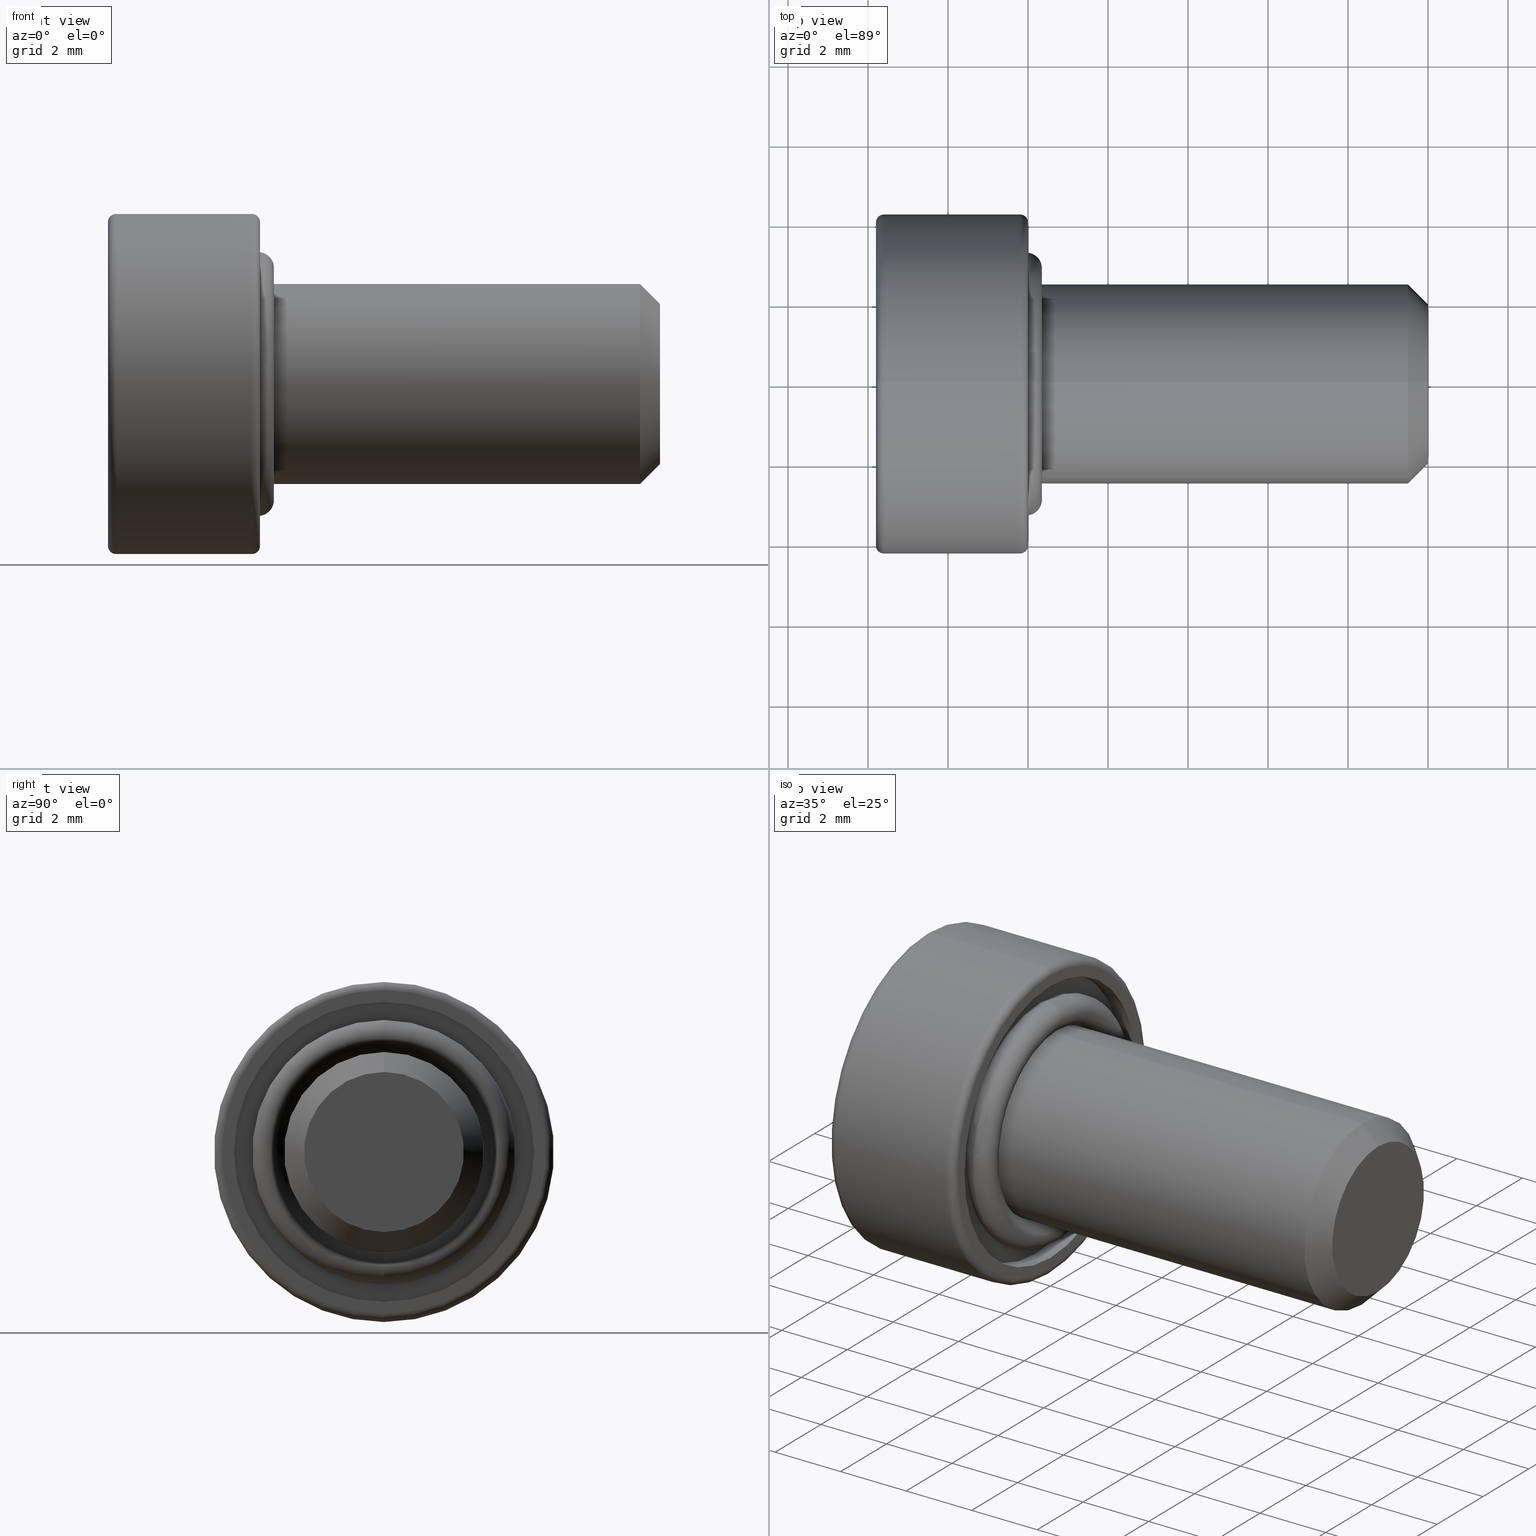
[diagram: canonical four-view strip — front | top / right | iso, engineering-drawing reading convention]
A machine part, canonical four-view strip (front | top / right | iso — engineering-drawing reading convention). The complete STEP part file that produces these views, byte-faithful:
ISO-10303-21;
HEADER;
FILE_DESCRIPTION (( 'STEP AP214' ),
    '1' );
FILE_NAME ('TL_418_M5_10.STEP',
    '2016-01-25T00:09:41',
    ( '' ),
    ( '' ),
    'SwSTEP 2.0',
    'SolidWorks 2015',
    '' );
FILE_SCHEMA (( 'AUTOMOTIVE_DESIGN' ));
ENDSEC;

DATA;
#1 = FILL_AREA_STYLE_COLOUR ( '', #736 ) ;
#2 = DIRECTION ( 'NONE',  ( 0.0000000000000000000, -1.000000000000000000, 0.0000000000000000000 ) ) ;
#3 = ORIENTED_EDGE ( 'NONE', *, *, #347, .F. ) ;
#4 =( GEOMETRIC_REPRESENTATION_CONTEXT ( 3 ) GLOBAL_UNCERTAINTY_ASSIGNED_CONTEXT ( ( #44 ) ) GLOBAL_UNIT_ASSIGNED_CONTEXT ( ( #157, #285, #344 ) ) REPRESENTATION_CONTEXT ( 'NONE', 'WORKASPACE' ) );
#5 = EDGE_CURVE ( 'NONE', #91, #808, #620, .T. ) ;
#6 = EDGE_CURVE ( 'NONE', #684, #583, #279, .T. ) ;
#7 = CARTESIAN_POINT ( 'NONE',  ( 0.0000000000000000000, 0.0000000000000000000, 0.0000000000000000000 ) ) ;
#8 = DIRECTION ( 'NONE',  ( -0.0000000000000000000, -1.000000000000000000, -0.0000000000000000000 ) ) ;
#9 = ORIENTED_EDGE ( 'NONE', *, *, #497, .F. ) ;
#10 = FACE_BOUND ( 'NONE', #151, .T. ) ;
#11 = CYLINDRICAL_SURFACE ( 'NONE', #643, 2.500000000000000000 ) ;
#12 = CARTESIAN_POINT ( 'NONE',  ( 10.00000000000000000, 0.0000000000000000000, 0.0000000000000000000 ) ) ;
#13 = ADVANCED_FACE ( 'NONE', ( #456 ), #737, .T. ) ;
#14 = CARTESIAN_POINT ( 'NONE',  ( -0.05000000000000007200, 0.0000000000000000000, 0.0000000000000000000 ) ) ;
#15 = PLANE ( 'NONE',  #158 ) ;
#16 = CARTESIAN_POINT ( 'NONE',  ( 0.0000000000000000000, 5.082284216461517100E-016, 4.050000000000001600 ) ) ;
#17 = AXIS2_PLACEMENT_3D ( 'NONE', #297, #723, #612 ) ;
#18 = VERTEX_POINT ( 'NONE', #371 ) ;
#19 = CARTESIAN_POINT ( 'NONE',  ( -0.4500000000000000100, 0.0000000000000000000, 0.0000000000000000000 ) ) ;
#20 = CARTESIAN_POINT ( 'NONE',  ( -0.4500000000000000100, 0.0000000000000000000, 0.0000000000000000000 ) ) ;
#21 = ORIENTED_EDGE ( 'NONE', *, *, #188, .T. ) ;
#22 = PRODUCT_DEFINITION ( 'UNKNOWN', '', #251, #175 ) ;
#23 = DIRECTION ( 'NONE',  ( 0.0000000000000000000, 1.000000000000000000, -1.224646799147353200E-016 ) ) ;
#24 = DIRECTION ( 'NONE',  ( 1.000000000000000000, 0.0000000000000000000, 0.0000000000000000000 ) ) ;
#25 = DIRECTION ( 'NONE',  ( 0.0000000000000000000, 0.0000000000000000000, 1.000000000000000000 ) ) ;
#26 = DIRECTION ( 'NONE',  ( 0.0000000000000000000, 0.0000000000000000000, -1.000000000000000000 ) ) ;
#27 = COLOUR_RGB ( '',0.7921568627450980000, 0.8196078431372548800, 0.9333333333333333500 ) ;
#28 = EDGE_CURVE ( 'NONE', #304, #324, #256, .T. ) ;
#29 = VERTEX_POINT ( 'NONE', #76 ) ;
#30 =( NAMED_UNIT ( * ) PLANE_ANGLE_UNIT ( ) SI_UNIT ( $, .RADIAN. ) );
#31 = EDGE_LOOP ( 'NONE', ( #483, #107, #269, #332 ) ) ;
#32 = CARTESIAN_POINT ( 'NONE',  ( -3.799999999999999800, 0.8660254037844360400, -1.499999999999995300 ) ) ;
#33 = DIRECTION ( 'NONE',  ( -0.0000000000000000000, -0.5000000000000003300, -0.8660254037844383700 ) ) ;
#34 = DIRECTION ( 'NONE',  ( 0.0000000000000000000, 0.0000000000000000000, -1.000000000000000000 ) ) ;
#35 = CARTESIAN_POINT ( 'NONE',  ( -1.800000000000000000, -1.732050807568872500, 3.588059837047438300E-016 ) ) ;
#36 = FACE_OUTER_BOUND ( 'NONE', #93, .T. ) ;
#37 = ADVANCED_FACE ( 'NONE', ( #754, #592 ), #80, .T. ) ;
#38 = DIRECTION ( 'NONE',  ( -0.7071067811865489100, 0.0000000000000000000, 0.7071067811865460200 ) ) ;
#39 = AXIS2_PLACEMENT_3D ( 'NONE', #502, #627, #703 ) ;
#40 = ORIENTED_EDGE ( 'NONE', *, *, #462, .T. ) ;
#41 = ORIENTED_EDGE ( 'NONE', *, *, #113, .F. ) ;
#42 = CARTESIAN_POINT ( 'NONE',  ( 0.0000000000000000000, 0.0000000000000000000, -3.750000000000000000 ) ) ;
#43 = APPLICATION_PROTOCOL_DEFINITION ( 'draft international standard', 'automotive_design', 1998, #114 ) ;
#44 = UNCERTAINTY_MEASURE_WITH_UNIT (LENGTH_MEASURE( 1.000000000000000100E-005 ), #157, 'distance_accuracy_value', 'NONE');
#45 = ORIENTED_EDGE ( 'NONE', *, *, #732, .T. ) ;
#46 = ORIENTED_EDGE ( 'NONE', *, *, #138, .F. ) ;
#47 = AXIS2_PLACEMENT_3D ( 'NONE', #611, #278, #771 ) ;
#48 = ORIENTED_EDGE ( 'NONE', *, *, #6, .F. ) ;
#49 = EDGE_CURVE ( 'NONE', #685, #304, #72, .T. ) ;
#50 = LINE ( 'NONE', #552, #396 ) ;
#51 = DIRECTION ( 'NONE',  ( 0.0000000000000000000, -1.000000000000000000, -1.251928832280969600E-016 ) ) ;
#52 = ORIENTED_EDGE ( 'NONE', *, *, #102, .T. ) ;
#53 = DIRECTION ( 'NONE',  ( 1.000000000000000000, -0.0000000000000000000, -0.0000000000000000000 ) ) ;
#54 = AXIS2_PLACEMENT_3D ( 'NONE', #668, #450, #742 ) ;
#55 = DIRECTION ( 'NONE',  ( 1.000000000000000000, 0.0000000000000000000, -0.0000000000000000000 ) ) ;
#56 = VECTOR ( 'NONE', #765, 1000.000000000000000 ) ;
#57 = CARTESIAN_POINT ( 'NONE',  ( -0.4500000000000000100, 3.061616997868383100E-016, -2.500000000000000000 ) ) ;
#58 = CIRCLE ( 'NONE', #546, 2.000000000000001800 ) ;
#59 = VERTEX_POINT ( 'NONE', #42 ) ;
#60 = DIRECTION ( 'NONE',  ( 0.0000000000000000000, 0.0000000000000000000, -1.000000000000000000 ) ) ;
#61 = DIRECTION ( 'NONE',  ( -1.000000000000000000, -0.0000000000000000000, -0.0000000000000000000 ) ) ;
#62 = ORIENTED_EDGE ( 'NONE', *, *, #702, .T. ) ;
#63 = AXIS2_PLACEMENT_3D ( 'NONE', #581, #406, #490 ) ;
#64 = EDGE_LOOP ( 'NONE', ( #681, #454, #132, #603 ) ) ;
#65 = CARTESIAN_POINT ( 'NONE',  ( -3.799999999999999800, -0.8660254037844348200, 1.499999999999994400 ) ) ;
#66 = EDGE_CURVE ( 'NONE', #59, #751, #414, .T. ) ;
#67 = DIRECTION ( 'NONE',  ( 0.0000000000000000000, -0.4999999999999998900, 0.8660254037844386000 ) ) ;
#68 = EDGE_CURVE ( 'NONE', #398, #29, #239, .T. ) ;
#69 = DIRECTION ( 'NONE',  ( 1.000000000000000000, -0.0000000000000000000, -0.0000000000000000000 ) ) ;
#70 = VECTOR ( 'NONE', #51, 1000.000000000000000 ) ;
#71 = DIRECTION ( 'NONE',  ( 0.0000000000000000000, 0.0000000000000000000, -1.000000000000000000 ) ) ;
#72 = LINE ( 'NONE', #791, #98 ) ;
#73 = ORIENTED_EDGE ( 'NONE', *, *, #227, .T. ) ;
#74 = DIRECTION ( 'NONE',  ( 0.0000000000000000000, -1.000000000000000000, 0.0000000000000000000 ) ) ;
#75 = SHAPE_DEFINITION_REPRESENTATION ( #370, #280 ) ;
#76 = CARTESIAN_POINT ( 'NONE',  ( -3.799999999999999800, 5.082284216461517100E-016, 4.050000000000001600 ) ) ;
#77 = DIRECTION ( 'NONE',  ( -1.000000000000000000, -0.0000000000000000000, -0.0000000000000000000 ) ) ;
#78 = VERTEX_POINT ( 'NONE', #238 ) ;
#79 = CARTESIAN_POINT ( 'NONE',  ( 0.0000000000000000000, 0.0000000000000000000, 0.0000000000000000000 ) ) ;
#80 = PLANE ( 'NONE',  #482 ) ;
#81 = ORIENTED_EDGE ( 'NONE', *, *, #422, .F. ) ;
#82 = AXIS2_PLACEMENT_3D ( 'NONE', #234, #241, #666 ) ;
#83 = CARTESIAN_POINT ( 'NONE',  ( -0.05000000000000007200, 0.0000000000000000000, -2.499999999999999600 ) ) ;
#84 = DIRECTION ( 'NONE',  ( 1.000000000000000000, 0.0000000000000000000, 0.0000000000000000000 ) ) ;
#85 = LINE ( 'NONE', #465, #575 ) ;
#86 = APPLICATION_PROTOCOL_DEFINITION ( 'draft international standard', 'automotive_design', 1998, #485 ) ;
#87 = CYLINDRICAL_SURFACE ( 'NONE', #424, 4.250000000000000900 ) ;
#88 = DIRECTION ( 'NONE',  ( -0.0000000000000000000, 1.000000000000000000, 8.763501825966792400E-016 ) ) ;
#89 = ITEM_DEFINED_TRANSFORMATION ( 'NONE', 'NONE', #717,  #401 ) ;
#90 = CARTESIAN_POINT ( 'NONE',  ( -0.05000000000000002400, 4.041334437186265500E-016, 3.299999999999999800 ) ) ;
#91 = VERTEX_POINT ( 'NONE', #210 ) ;
#92 = DIRECTION ( 'NONE',  ( 1.000000000000000000, -0.0000000000000000000, -0.0000000000000000000 ) ) ;
#93 = EDGE_LOOP ( 'NONE', ( #631, #558 ) ) ;
#94 = DIRECTION ( 'NONE',  ( 0.0000000000000000000, 0.0000000000000000000, 1.000000000000000000 ) ) ;
#95 = DIRECTION ( 'NONE',  ( 1.000000000000000000, -0.0000000000000000000, -0.0000000000000000000 ) ) ;
#96 = DIRECTION ( 'NONE',  ( 0.0000000000000000000, 0.0000000000000000000, 1.000000000000000000 ) ) ;
#97 = LINE ( 'NONE', #133, #439 ) ;
#98 = VECTOR ( 'NONE', #733, 1000.000000000000000 ) ;
#99 = AXIS2_PLACEMENT_3D ( 'NONE', #777, #23, #420 ) ;
#100 = DIRECTION ( 'NONE',  ( -1.000000000000000000, -0.0000000000000000000, -0.0000000000000000000 ) ) ;
#101 = CIRCLE ( 'NONE', #264, 2.500000000000000000 ) ;
#102 = EDGE_CURVE ( 'NONE', #685, #649, #50, .T. ) ;
#103 = DIRECTION ( 'NONE',  ( 0.0000000000000000000, 0.0000000000000000000, -1.000000000000000000 ) ) ;
#104 = ORIENTED_EDGE ( 'NONE', *, *, #308, .F. ) ;
#105 = EDGE_LOOP ( 'NONE', ( #560, #757, #326, #104 ) ) ;
#106 = DIRECTION ( 'NONE',  ( -1.000000000000000000, 0.0000000000000000000, 0.0000000000000000000 ) ) ;
#107 = ORIENTED_EDGE ( 'NONE', *, *, #524, .T. ) ;
#108 =( LENGTH_UNIT ( ) NAMED_UNIT ( * ) SI_UNIT ( .MILLI., .METRE. ) );
#109 = CIRCLE ( 'NONE', #654, 2.499999999999999600 ) ;
#110 = FACE_OUTER_BOUND ( 'NONE', #407, .T. ) ;
#111 = PRODUCT_DEFINITION ( 'UNKNOWN', '', #154, #590 ) ;
#112 = EDGE_LOOP ( 'NONE', ( #391, #245, #283, #73 ) ) ;
#113 = EDGE_CURVE ( 'NONE', #364, #685, #570, .T. ) ;
#114 = APPLICATION_CONTEXT ( 'automotive_design' ) ;
#115 = AXIS2_PLACEMENT_3D ( 'NONE', #586, #8, #26 ) ;
#116 = EDGE_CURVE ( 'NONE', #623, #553, #555, .T. ) ;
#117 = FACE_OUTER_BOUND ( 'NONE', #31, .T. ) ;
#118 = CIRCLE ( 'NONE', #321, 4.050000000000001600 ) ;
#119 = ADVANCED_FACE ( 'NONE', ( #213 ), #11, .T. ) ;
#120 = CLOSED_SHELL ( 'NONE', ( #173, #178, #184, #501 ) ) ;
#121 = DIRECTION ( 'NONE',  ( 0.0000000000000000000, 0.0000000000000000000, -1.000000000000000000 ) ) ;
#122 = ORIENTED_EDGE ( 'NONE', *, *, #335, .F. ) ;
#123 = ORIENTED_EDGE ( 'NONE', *, *, #102, .F. ) ;
#124 = ORIENTED_EDGE ( 'NONE', *, *, #28, .F. ) ;
#125 = AXIS2_PLACEMENT_3D ( 'NONE', #428, #74, #103 ) ;
#126 = ADVANCED_FACE ( 'NONE', ( #537 ), #522, .F. ) ;
#127 = CIRCLE ( 'NONE', #458, 0.1999999999999996500 ) ;
#128 = CIRCLE ( 'NONE', #246, 4.250000000000000900 ) ;
#129 = SURFACE_SIDE_STYLE ('',( #390 ) ) ;
#130 = VERTEX_POINT ( 'NONE', #447 ) ;
#131 = ADVANCED_FACE ( 'NONE', ( #358, #36 ), #430, .F. ) ;
#132 = ORIENTED_EDGE ( 'NONE', *, *, #160, .F. ) ;
#133 = CARTESIAN_POINT ( 'NONE',  ( -1.800000000000000000, 1.732050807568872500, -3.579244311116258100E-017 ) ) ;
#134 = FACE_OUTER_BOUND ( 'NONE', #105, .T. ) ;
#135 = DIRECTION ( 'NONE',  ( 0.0000000000000000000, 1.224646799147353200E-016, 1.000000000000000000 ) ) ;
#136 = SURFACE_STYLE_USAGE ( .BOTH. , #534 ) ;
#137 = DIRECTION ( 'NONE',  ( 1.000000000000000000, 0.0000000000000000000, 0.0000000000000000000 ) ) ;
#138 = EDGE_CURVE ( 'NONE', #384, #374, #677, .T. ) ;
#139 =( NAMED_UNIT ( * ) PLANE_ANGLE_UNIT ( ) SI_UNIT ( $, .RADIAN. ) );
#140 = EDGE_LOOP ( 'NONE', ( #596, #399, #641, #174 ) ) ;
#141 = CARTESIAN_POINT ( 'NONE',  ( -0.4500000000000000100, 4.592425496802574000E-016, 3.750000000000000000 ) ) ;
#142 = CARTESIAN_POINT ( 'NONE',  ( -0.05000000000000002400, 3.551475717527323800E-016, 2.899999999999999900 ) ) ;
#143 = TOROIDAL_SURFACE ( 'NONE', #687, 2.899999999999999900, 0.4000000000000001300 ) ;
#144 = DIRECTION ( 'NONE',  ( 1.000000000000000000, 0.0000000000000000000, 0.0000000000000000000 ) ) ;
#145 = TOROIDAL_SURFACE ( 'NONE', #17, 2.899999999999999900, 0.4000000000000001300 ) ;
#146 = DIRECTION ( 'NONE',  ( 0.0000000000000000000, 0.0000000000000000000, -1.000000000000000000 ) ) ;
#147 = ADVANCED_FACE ( 'NONE', ( #380 ), #817, .T. ) ;
#148 = AXIS2_PLACEMENT_3D ( 'NONE', #511, #217, #495 ) ;
#149 = DIRECTION ( 'NONE',  ( 0.0000000000000000000, 0.0000000000000000000, -1.000000000000000000 ) ) ;
#150 = CARTESIAN_POINT ( 'NONE',  ( -0.05000000000000002400, 3.551475717527323800E-016, 2.899999999999999900 ) ) ;
#151 = EDGE_LOOP ( 'NONE', ( #294, #204 ) ) ;
#152 = DIRECTION ( 'NONE',  ( 0.0000000000000000000, 0.0000000000000000000, -1.000000000000000000 ) ) ;
#153 = ORIENTED_EDGE ( 'NONE', *, *, #259, .T. ) ;
#154 = PRODUCT_DEFINITION_FORMATION_WITH_SPECIFIED_SOURCE ( 'ANY', '', #438, .NOT_KNOWN. ) ;
#155 =( LENGTH_UNIT ( ) NAMED_UNIT ( * ) SI_UNIT ( .MILLI., .METRE. ) );
#156 = CARTESIAN_POINT ( 'NONE',  ( -0.05000000000000002400, 0.0000000000000000000, 0.0000000000000000000 ) ) ;
#157 =( LENGTH_UNIT ( ) NAMED_UNIT ( * ) SI_UNIT ( .MILLI., .METRE. ) );
#158 = AXIS2_PLACEMENT_3D ( 'NONE', #540, #363, #599 ) ;
#159 = DIRECTION ( 'NONE',  ( 0.0000000000000000000, 0.0000000000000000000, -1.000000000000000000 ) ) ;
#160 = EDGE_CURVE ( 'NONE', #304, #78, #657, .T. ) ;
#161 = EDGE_CURVE ( 'NONE', #730, #271, #506, .T. ) ;
#162 = PLANE ( 'NONE',  #63 ) ;
#163 = DIRECTION ( 'NONE',  ( 1.000000000000000000, 0.0000000000000000000, 0.0000000000000000000 ) ) ;
#164 = ORIENTED_EDGE ( 'NONE', *, *, #188, .F. ) ;
#165 = CARTESIAN_POINT ( 'NONE',  ( -1.800000000000000000, 0.8660254037844360400, -1.499999999999995300 ) ) ;
#166 = CARTESIAN_POINT ( 'NONE',  ( -1.800000000000000000, -0.8660254037844362700, -1.499999999999995600 ) ) ;
#167 = DIRECTION ( 'NONE',  ( -1.000000000000000000, -0.0000000000000000000, -0.0000000000000000000 ) ) ;
#168 = DIRECTION ( 'NONE',  ( 1.000000000000000000, -0.0000000000000000000, -0.0000000000000000000 ) ) ;
#169 = FACE_OUTER_BOUND ( 'NONE', #360, .T. ) ;
#170 = ORIENTED_EDGE ( 'NONE', *, *, #208, .F. ) ;
#171 = FACE_OUTER_BOUND ( 'NONE', #467, .T. ) ;
#172 = AXIS2_PLACEMENT_3D ( 'NONE', #315, #423, #556 ) ;
#173 = ADVANCED_FACE ( 'NONE', ( #806 ), #145, .T. ) ;
#174 = ORIENTED_EDGE ( 'NONE', *, *, #772, .F. ) ;
#175 = PRODUCT_DEFINITION_CONTEXT ( 'detailed design', #319, 'design' ) ;
#176 = DIRECTION ( 'NONE',  ( 0.0000000000000000000, 0.0000000000000000000, -1.000000000000000000 ) ) ;
#178 = ADVANCED_FACE ( 'NONE', ( #171 ), #486, .T. ) ;
#177 = ORIENTED_EDGE ( 'NONE', *, *, #49, .F. ) ;
#179 = ADVANCED_FACE ( 'NONE', ( #788 ), #628, .F. ) ;
#180 = CARTESIAN_POINT ( 'NONE',  ( 0.0000000000000000000, 0.0000000000000000000, 0.0000000000000000000 ) ) ;
#181 = PRODUCT_RELATED_PRODUCT_CATEGORY ( 'part', '', ( #689 ) ) ;
#182 = CARTESIAN_POINT ( 'NONE',  ( 0.0000000000000000000, 0.0000000000000000000, 0.0000000000000000000 ) ) ;
#183 = EDGE_CURVE ( 'NONE', #196, #252, #632, .T. ) ;
#184 = ADVANCED_FACE ( 'NONE', ( #293 ), #461, .T. ) ;
#185 = VERTEX_POINT ( 'NONE', #602 ) ;
#186 = ADVANCED_FACE ( 'NONE', ( #609 ), #727, .F. ) ;
#187 = AXIS2_PLACEMENT_3D ( 'NONE', #14, #92, #220 ) ;
#188 = EDGE_CURVE ( 'NONE', #583, #684, #128, .T. ) ;
#189 = ADVANCED_FACE ( 'NONE', ( #110 ), #87, .T. ) ;
#190 = CIRCLE ( 'NONE', #334, 0.4000000000000001900 ) ;
#191 = DIRECTION ( 'NONE',  ( 0.0000000000000000000, 0.0000000000000000000, -1.000000000000000000 ) ) ;
#192 = VECTOR ( 'NONE', #378, 1000.000000000000000 ) ;
#193 = PRESENTATION_STYLE_ASSIGNMENT (( #731 ) ) ;
#194 = CARTESIAN_POINT ( 'NONE',  ( -0.05000000000000002400, 0.0000000000000000000, 0.0000000000000000000 ) ) ;
#195 = AXIS2_PLACEMENT_3D ( 'NONE', #156, #168, #149 ) ;
#196 = VERTEX_POINT ( 'NONE', #801 ) ;
#197 = DIRECTION ( 'NONE',  ( 0.0000000000000000000, 0.0000000000000000000, -1.000000000000000000 ) ) ;
#198 = PRODUCT_RELATED_PRODUCT_CATEGORY ( 'part', '', ( #438 ) ) ;
#199 = DIRECTION ( 'NONE',  ( 0.0000000000000000000, 0.0000000000000000000, -1.000000000000000000 ) ) ;
#200 = UNCERTAINTY_MEASURE_WITH_UNIT (LENGTH_MEASURE( 1.000000000000000100E-005 ), #155, 'distance_accuracy_value', 'NONE');
#201 = CYLINDRICAL_SURFACE ( 'NONE', #172, 2.500000000000000000 ) ;
#202 = PRESENTATION_STYLE_ASSIGNMENT (( #426 ) ) ;
#203 = CARTESIAN_POINT ( 'NONE',  ( -0.4500000000000000100, 0.0000000000000000000, 0.0000000000000000000 ) ) ;
#204 = ORIENTED_EDGE ( 'NONE', *, *, #802, .F. ) ;
#205 = STYLED_ITEM ( 'NONE', ( #202 ), #302 ) ;
#206 = EDGE_CURVE ( 'NONE', #18, #258, #764, .T. ) ;
#207 = ORIENTED_EDGE ( 'NONE', *, *, #518, .T. ) ;
#208 = EDGE_CURVE ( 'NONE', #185, #649, #266, .T. ) ;
#209 = CARTESIAN_POINT ( 'NONE',  ( -0.4500000000000000100, 0.0000000000000000000, 2.500000000000000000 ) ) ;
#210 = CARTESIAN_POINT ( 'NONE',  ( -0.05000000000000007200, 3.061616997868382600E-016, 2.499999999999999600 ) ) ;
#211 = ADVANCED_FACE ( 'NONE', ( #646 ), #566, .T. ) ;
#212 = DIRECTION ( 'NONE',  ( 1.000000000000000000, 0.0000000000000000000, 0.0000000000000000000 ) ) ;
#213 = FACE_OUTER_BOUND ( 'NONE', #783, .T. ) ;
#214 = DIRECTION ( 'NONE',  ( -0.0000000000000000000, 1.000000000000000000, 8.763501825966792400E-016 ) ) ;
#215 = DIRECTION ( 'NONE',  ( 1.000000000000000000, -0.0000000000000000000, -0.0000000000000000000 ) ) ;
#216 = VERTEX_POINT ( 'NONE', #57 ) ;
#217 = DIRECTION ( 'NONE',  ( -0.0000000000000000000, 0.8660254037844388200, 0.4999999999999998300 ) ) ;
#218 = AXIS2_PLACEMENT_3D ( 'NONE', #633, #804, #250 ) ;
#219 = DIRECTION ( 'NONE',  ( 0.0000000000000000000, -8.763501825966792400E-016, 1.000000000000000000 ) ) ;
#220 = DIRECTION ( 'NONE',  ( 0.0000000000000000000, 0.0000000000000000000, -1.000000000000000000 ) ) ;
#221 = CIRCLE ( 'NONE', #39, 3.299999999999999800 ) ;
#222 = VECTOR ( 'NONE', #61, 1000.000000000000000 ) ;
#223 = EDGE_LOOP ( 'NONE', ( #567, #568 ) ) ;
#224 = CARTESIAN_POINT ( 'NONE',  ( 10.00000000000000000, 0.0000000000000000000, 2.000000000000001800 ) ) ;
#225 = DIRECTION ( 'NONE',  ( -1.000000000000000000, -0.0000000000000000000, -0.0000000000000000000 ) ) ;
#226 = DIRECTION ( 'NONE',  ( 0.0000000000000000000, 0.4999999999999999400, -0.8660254037844387100 ) ) ;
#227 = EDGE_CURVE ( 'NONE', #244, #273, #452, .T. ) ;
#228 = ORIENTED_EDGE ( 'NONE', *, *, #576, .F. ) ;
#229 = FILL_AREA_STYLE_COLOUR ( '', #257 ) ;
#230 = CARTESIAN_POINT ( 'NONE',  ( -3.799999999999999800, 0.0000000000000000000, 0.0000000000000000000 ) ) ;
#231 = ORIENTED_EDGE ( 'NONE', *, *, #587, .F. ) ;
#232 = DIRECTION ( 'NONE',  ( 1.000000000000000000, 0.0000000000000000000, 0.0000000000000000000 ) ) ;
#233 = ADVANCED_FACE ( 'NONE', ( #722 ), #345, .F. ) ;
#234 = CARTESIAN_POINT ( 'NONE',  ( -0.4500000000000000100, 0.0000000000000000000, 0.0000000000000000000 ) ) ;
#235 = DIRECTION ( 'NONE',  ( -1.000000000000000000, -0.0000000000000000000, -0.0000000000000000000 ) ) ;
#236 = CARTESIAN_POINT ( 'NONE',  ( -3.799999999999999800, -0.8660254037844362700, -1.499999999999995600 ) ) ;
#237 = AXIS2_PLACEMENT_3D ( 'NONE', #408, #298, #197 ) ;
#238 = CARTESIAN_POINT ( 'NONE',  ( -1.800000000000000000, -1.732050807568872500, 3.588059837047438300E-016 ) ) ;
#239 = CIRCLE ( 'NONE', #521, 4.050000000000001600 ) ;
#240 = EDGE_CURVE ( 'NONE', #271, #730, #58, .T. ) ;
#241 = DIRECTION ( 'NONE',  ( 1.000000000000000000, 0.0000000000000000000, 0.0000000000000000000 ) ) ;
#242 = DIRECTION ( 'NONE',  ( 1.000000000000000000, 0.0000000000000000000, 0.0000000000000000000 ) ) ;
#243 = ORIENTED_EDGE ( 'NONE', *, *, #802, .T. ) ;
#244 = VERTEX_POINT ( 'NONE', #83 ) ;
#245 = ORIENTED_EDGE ( 'NONE', *, *, #5, .F. ) ;
#246 = AXIS2_PLACEMENT_3D ( 'NONE', #798, #500, #159 ) ;
#247 = CARTESIAN_POINT ( 'NONE',  ( -1.800000000000000000, -0.8660254037844362700, -1.499999999999995600 ) ) ;
#248 = FACE_OUTER_BOUND ( 'NONE', #688, .T. ) ;
#249 = LINE ( 'NONE', #720, #696 ) ;
#250 = DIRECTION ( 'NONE',  ( 0.0000000000000000000, 0.0000000000000000000, -1.000000000000000000 ) ) ;
#251 = PRODUCT_DEFINITION_FORMATION_WITH_SPECIFIED_SOURCE ( 'ANY', '', #689, .NOT_KNOWN. ) ;
#252 = VERTEX_POINT ( 'NONE', #660 ) ;
#253 = PRESENTATION_LAYER_ASSIGNMENT (  '', '', ( #205 ) ) ;
#254 = EDGE_CURVE ( 'NONE', #196, #553, #578, .T. ) ;
#255 = CIRCLE ( 'NONE', #47, 0.1999999999999996500 ) ;
#256 = LINE ( 'NONE', #166, #441 ) ;
#257 = COLOUR_RGB ( '',0.7921568627450980000, 0.8196078431372548800, 0.9333333333333333500 ) ;
#258 = VERTEX_POINT ( 'NONE', #436 ) ;
#259 = EDGE_CURVE ( 'NONE', #551, #59, #249, .T. ) ;
#260 = AXIS2_PLACEMENT_3D ( 'NONE', #142, #675, #135 ) ;
#261 = CLOSED_SHELL ( 'NONE', ( #262, #318, #625, #211, #126, #329, #189, #131, #37, #464, #409, #493, #13, #119, #312, #147, #275, #179, #233, #186, #333, #270, #330 ) ) ;
#262 = ADVANCED_FACE ( 'NONE', ( #427 ), #549, .T. ) ;
#263 = DIRECTION ( 'NONE',  ( 1.000000000000000000, 0.0000000000000000000, 0.0000000000000000000 ) ) ;
#264 = AXIS2_PLACEMENT_3D ( 'NONE', #295, #301, #327 ) ;
#265 = VECTOR ( 'NONE', #664, 1000.000000000000000 ) ;
#266 = LINE ( 'NONE', #494, #747 ) ;
#267 = SHAPE_DEFINITION_REPRESENTATION ( #811, #818 ) ;
#268 = DIRECTION ( 'NONE',  ( 0.0000000000000000000, 0.0000000000000000000, -1.000000000000000000 ) ) ;
#269 = ORIENTED_EDGE ( 'NONE', *, *, #206, .T. ) ;
#270 = ADVANCED_FACE ( 'NONE', ( #404 ), #162, .F. ) ;
#271 = VERTEX_POINT ( 'NONE', #795 ) ;
#272 = CARTESIAN_POINT ( 'NONE',  ( -0.05000000000000007200, 0.0000000000000000000, 0.0000000000000000000 ) ) ;
#273 = VERTEX_POINT ( 'NONE', #366 ) ;
#274 = DIRECTION ( 'NONE',  ( 0.0000000000000000000, 0.0000000000000000000, -1.000000000000000000 ) ) ;
#275 = ADVANCED_FACE ( 'NONE', ( #529 ), #15, .F. ) ;
#276 = DIRECTION ( 'NONE',  ( 0.0000000000000000000, 0.0000000000000000000, -1.000000000000000000 ) ) ;
#277 = CYLINDRICAL_SURFACE ( 'NONE', #588, 4.250000000000000900 ) ;
#278 = DIRECTION ( 'NONE',  ( 0.0000000000000000000, 1.000000000000000000, -1.224646799147353200E-016 ) ) ;
#279 = CIRCLE ( 'NONE', #314, 4.250000000000000900 ) ;
#280 = SHAPE_REPRESENTATION ( 'TL_418_M5_10', ( #810, #717 ), #766 ) ;
#281 = CARTESIAN_POINT ( 'NONE',  ( 10.00000000000000000, 3.061616997868383100E-016, -2.500000000000000000 ) ) ;
#282 = CIRCLE ( 'NONE', #125, 0.1999999999999996500 ) ;
#283 = ORIENTED_EDGE ( 'NONE', *, *, #509, .T. ) ;
#284 = AXIS2_PLACEMENT_3D ( 'NONE', #431, #667, #191 ) ;
#285 =( NAMED_UNIT ( * ) PLANE_ANGLE_UNIT ( ) SI_UNIT ( $, .RADIAN. ) );
#286 = ORIENTED_EDGE ( 'NONE', *, *, #5, .T. ) ;
#287 = EDGE_CURVE ( 'NONE', #273, #244, #683, .T. ) ;
#288 = DIRECTION ( 'NONE',  ( 0.0000000000000000000, 0.0000000000000000000, -1.000000000000000000 ) ) ;
#289 = CARTESIAN_POINT ( 'NONE',  ( -3.799999999999999800, 0.0000000000000000000, 0.0000000000000000000 ) ) ;
#290 = VECTOR ( 'NONE', #214, 1000.000000000000000 ) ;
#291 = DIRECTION ( 'NONE',  ( 0.0000000000000000000, 0.0000000000000000000, -1.000000000000000000 ) ) ;
#292 = AXIS2_PLACEMENT_3D ( 'NONE', #35, #779, #794 ) ;
#293 = FACE_OUTER_BOUND ( 'NONE', #784, .T. ) ;
#294 = ORIENTED_EDGE ( 'NONE', *, *, #755, .F. ) ;
#295 = CARTESIAN_POINT ( 'NONE',  ( -0.4500000000000000100, 0.0000000000000000000, 0.0000000000000000000 ) ) ;
#296 = ORIENTED_EDGE ( 'NONE', *, *, #480, .F. ) ;
#297 = CARTESIAN_POINT ( 'NONE',  ( -0.05000000000000002400, 0.0000000000000000000, 0.0000000000000000000 ) ) ;
#298 = DIRECTION ( 'NONE',  ( 1.000000000000000000, 0.0000000000000000000, 0.0000000000000000000 ) ) ;
#299 = CARTESIAN_POINT ( 'NONE',  ( -3.600000000000000100, 0.0000000000000000000, 0.0000000000000000000 ) ) ;
#300 = ORIENTED_EDGE ( 'NONE', *, *, #437, .T. ) ;
#301 = DIRECTION ( 'NONE',  ( 1.000000000000000000, 0.0000000000000000000, 0.0000000000000000000 ) ) ;
#302 = MANIFOLD_SOLID_BREP ( '��]1', #120 ) ;
#303 = DIRECTION ( 'NONE',  ( -0.0000000000000000000, 0.4999999999999998300, -0.8660254037844387100 ) ) ;
#304 = VERTEX_POINT ( 'NONE', #538 ) ;
#305 = DIRECTION ( 'NONE',  ( -1.000000000000000000, 0.0000000000000000000, 0.0000000000000000000 ) ) ;
#306 = MECHANICAL_DESIGN_GEOMETRIC_PRESENTATION_REPRESENTATION (  '', ( #205 ), #346 ) ;
#307 = ORIENTED_EDGE ( 'NONE', *, *, #116, .T. ) ;
#308 = EDGE_CURVE ( 'NONE', #629, #515, #797, .T. ) ;
#309 = TOROIDAL_SURFACE ( 'NONE', #516, 4.050000000000001600, 0.2000000000000000100 ) ;
#310 = DIRECTION ( 'NONE',  ( 1.000000000000000000, 0.0000000000000000000, 0.0000000000000000000 ) ) ;
#311 = VECTOR ( 'NONE', #622, 1000.000000000000100 ) ;
#312 = ADVANCED_FACE ( 'NONE', ( #134 ), #638, .T. ) ;
#313 = ORIENTED_EDGE ( 'NONE', *, *, #138, .T. ) ;
#314 = AXIS2_PLACEMENT_3D ( 'NONE', #440, #487, #807 ) ;
#315 = CARTESIAN_POINT ( 'NONE',  ( 10.00000000000000000, 0.0000000000000000000, 0.0000000000000000000 ) ) ;
#316 = EDGE_LOOP ( 'NONE', ( #3, #170, #231, #650, #749, #481 ) ) ;
#317 = CARTESIAN_POINT ( 'NONE',  ( -1.800000000000000000, 0.8660254037844367100, 1.499999999999996000 ) ) ;
#318 = ADVANCED_FACE ( 'NONE', ( #331 ), #309, .T. ) ;
#319 = APPLICATION_CONTEXT ( 'automotive_design' ) ;
#320 = CIRCLE ( 'NONE', #415, 3.299999999999999800 ) ;
#321 = AXIS2_PLACEMENT_3D ( 'NONE', #617, #167, #34 ) ;
#322 = DIRECTION ( 'NONE',  ( 0.0000000000000000000, 0.0000000000000000000, 1.000000000000000000 ) ) ;
#323 = VECTOR ( 'NONE', #88, 1000.000000000000000 ) ;
#324 = VERTEX_POINT ( 'NONE', #343 ) ;
#325 = CARTESIAN_POINT ( 'NONE',  ( 0.0000000000000000000, 4.592425496802574000E-016, 3.750000000000000000 ) ) ;
#326 = ORIENTED_EDGE ( 'NONE', *, *, #474, .T. ) ;
#327 = DIRECTION ( 'NONE',  ( 0.0000000000000000000, 0.0000000000000000000, -1.000000000000000000 ) ) ;
#328 = ORIENTED_EDGE ( 'NONE', *, *, #615, .T. ) ;
#329 = ADVANCED_FACE ( 'NONE', ( #117 ), #277, .T. ) ;
#330 = ADVANCED_FACE ( 'NONE', ( #774 ), #547, .F. ) ;
#331 = FACE_OUTER_BOUND ( 'NONE', #469, .T. ) ;
#332 = ORIENTED_EDGE ( 'NONE', *, *, #732, .F. ) ;
#333 = ADVANCED_FACE ( 'NONE', ( #619 ), #574, .F. ) ;
#334 = AXIS2_PLACEMENT_3D ( 'NONE', #150, #580, #709 ) ;
#335 = EDGE_CURVE ( 'NONE', #252, #130, #752, .T. ) ;
#336 = ORIENTED_EDGE ( 'NONE', *, *, #66, .T. ) ;
#337 = DIRECTION ( 'NONE',  ( 0.0000000000000000000, 0.0000000000000000000, -1.000000000000000000 ) ) ;
#338 = VECTOR ( 'NONE', #372, 1000.000000000000000 ) ;
#339 = VECTOR ( 'NONE', #67, 1000.000000000000200 ) ;
#340 = AXIS2_PLACEMENT_3D ( 'NONE', #12, #530, #533 ) ;
#341 = EDGE_LOOP ( 'NONE', ( #726, #770, #492, #466, #610, #697 ) ) ;
#342 = EDGE_CURVE ( 'NONE', #252, #364, #97, .T. ) ;
#343 = CARTESIAN_POINT ( 'NONE',  ( -3.799999999999999800, -0.8660254037844362700, -1.499999999999995600 ) ) ;
#344 =( NAMED_UNIT ( * ) SI_UNIT ( $, .STERADIAN. ) SOLID_ANGLE_UNIT ( ) );
#345 = PLANE ( 'NONE',  #577 ) ;
#346 =( GEOMETRIC_REPRESENTATION_CONTEXT ( 3 ) GLOBAL_UNCERTAINTY_ASSIGNED_CONTEXT ( ( #200 ) ) GLOBAL_UNIT_ASSIGNED_CONTEXT ( ( #155, #397, #532 ) ) REPRESENTATION_CONTEXT ( 'NONE', 'WORKASPACE' ) );
#347 = EDGE_CURVE ( 'NONE', #649, #324, #455, .T. ) ;
#348 = ORIENTED_EDGE ( 'NONE', *, *, #755, .T. ) ;
#349 = CARTESIAN_POINT ( 'NONE',  ( 0.0000000000000000000, 0.0000000000000000000, 0.0000000000000000000 ) ) ;
#350 = CARTESIAN_POINT ( 'NONE',  ( -0.2000000000000000900, 0.0000000000000000000, 0.0000000000000000000 ) ) ;
#351 = DIRECTION ( 'NONE',  ( 1.000000000000000000, -0.0000000000000000000, -0.0000000000000000000 ) ) ;
#352 = ORIENTED_EDGE ( 'NONE', *, *, #422, .T. ) ;
#353 = DIRECTION ( 'NONE',  ( 0.0000000000000000000, -0.4999999999999998900, 0.8660254037844386000 ) ) ;
#354 = AXIS2_PLACEMENT_3D ( 'NONE', #382, #106, #25 ) ;
#355 = DIRECTION ( 'NONE',  ( 0.0000000000000000000, 0.5000000000000011100, 0.8660254037844380400 ) ) ;
#356 = CIRCLE ( 'NONE', #99, 0.1999999999999996500 ) ;
#357 = PLANE ( 'NONE',  #624 ) ;
#358 = FACE_BOUND ( 'NONE', #316, .T. ) ;
#359 = CARTESIAN_POINT ( 'NONE',  ( 0.0000000000000000000, 0.0000000000000000000, 0.0000000000000000000 ) ) ;
#360 = EDGE_LOOP ( 'NONE', ( #40, #613 ) ) ;
#361 =( GEOMETRIC_REPRESENTATION_CONTEXT ( 3 ) GLOBAL_UNCERTAINTY_ASSIGNED_CONTEXT ( ( #812 ) ) GLOBAL_UNIT_ASSIGNED_CONTEXT ( ( #606, #30, #739 ) ) REPRESENTATION_CONTEXT ( 'NONE', 'WORKASPACE' ) );
#362 = CARTESIAN_POINT ( 'NONE',  ( -3.600000000000000100, 5.204748896376250700E-016, 4.250000000000000900 ) ) ;
#363 = DIRECTION ( 'NONE',  ( 0.0000000000000000000, 0.8660254037844384900, -0.5000000000000004400 ) ) ;
#364 = VERTEX_POINT ( 'NONE', #694 ) ;
#365 = CARTESIAN_POINT ( 'NONE',  ( 9.500000000000000000, 0.0000000000000000000, 2.500000000000000000 ) ) ;
#366 = CARTESIAN_POINT ( 'NONE',  ( -0.05000000000000002400, 0.0000000000000000000, -3.299999999999999800 ) ) ;
#367 = MANIFOLD_SOLID_BREP ( '��� - �����o��2', #261 ) ;
#368 = CARTESIAN_POINT ( 'NONE',  ( -3.799999999999999800, -1.732050807568872500, 3.588059837047438300E-016 ) ) ;
#369 = CARTESIAN_POINT ( 'NONE',  ( -1.800000000000000000, 0.0000000000000000000, 0.0000000000000000000 ) ) ;
#370 = PRODUCT_DEFINITION_SHAPE ( 'NONE', 'NONE',  #111 ) ;
#371 = CARTESIAN_POINT ( 'NONE',  ( -0.2000000000000000900, 5.204748896376250700E-016, 4.250000000000000900 ) ) ;
#372 = DIRECTION ( 'NONE',  ( -1.000000000000000000, -0.0000000000000000000, -0.0000000000000000000 ) ) ;
#373 = APPLICATION_PROTOCOL_DEFINITION ( 'draft international standard', 'automotive_design', 1998, #319 ) ;
#374 = VERTEX_POINT ( 'NONE', #209 ) ;
#375 = ORIENTED_EDGE ( 'NONE', *, *, #206, .F. ) ;
#376 = EDGE_LOOP ( 'NONE', ( #809, #814, #48, #543 ) ) ;
#377 = AXIS2_PLACEMENT_3D ( 'NONE', #203, #536, #762 ) ;
#378 = DIRECTION ( 'NONE',  ( -1.000000000000000000, -0.0000000000000000000, -0.0000000000000000000 ) ) ;
#379 = EDGE_CURVE ( 'NONE', #271, #539, #676, .T. ) ;
#380 = FACE_OUTER_BOUND ( 'NONE', #412, .T. ) ;
#381 = APPLICATION_CONTEXT ( 'automotive_design' ) ;
#382 = CARTESIAN_POINT ( 'NONE',  ( 10.00000000000000000, 0.0000000000000000000, 0.0000000000000000000 ) ) ;
#383 = SURFACE_STYLE_FILL_AREA ( #712 ) ;
#384 = VERTEX_POINT ( 'NONE', #365 ) ;
#385 = DIRECTION ( 'NONE',  ( -1.000000000000000000, -0.0000000000000000000, -0.0000000000000000000 ) ) ;
#386 = AXIS2_PLACEMENT_3D ( 'NONE', #421, #729, #291 ) ;
#387 = PRODUCT_CONTEXT ( 'NONE', #485, 'mechanical' ) ;
#388 = CARTESIAN_POINT ( 'NONE',  ( 10.00000000000000000, 0.0000000000000000000, 0.0000000000000000000 ) ) ;
#389 = LINE ( 'NONE', #453, #548 ) ;
#390 = SURFACE_STYLE_FILL_AREA ( #796 ) ;
#391 = ORIENTED_EDGE ( 'NONE', *, *, #615, .F. ) ;
#392 = AXIS2_PLACEMENT_3D ( 'NONE', #528, #479, #274 ) ;
#393 = EDGE_CURVE ( 'NONE', #18, #629, #255, .T. ) ;
#394 = EDGE_CURVE ( 'NONE', #29, #583, #356, .T. ) ;
#395 = ORIENTED_EDGE ( 'NONE', *, *, #308, .T. ) ;
#396 = VECTOR ( 'NONE', #100, 1000.000000000000000 ) ;
#397 =( NAMED_UNIT ( * ) PLANE_ANGLE_UNIT ( ) SI_UNIT ( $, .RADIAN. ) );
#398 = VERTEX_POINT ( 'NONE', #470 ) ;
#399 = ORIENTED_EDGE ( 'NONE', *, *, #161, .F. ) ;
#400 = DIRECTION ( 'NONE',  ( 0.0000000000000000000, 0.0000000000000000000, -1.000000000000000000 ) ) ;
#401 = AXIS2_PLACEMENT_3D ( 'NONE', #182, #671, #674 ) ;
#402 = CARTESIAN_POINT ( 'NONE',  ( 0.0000000000000000000, 0.0000000000000000000, -4.050000000000001600 ) ) ;
#403 = VECTOR ( 'NONE', #768, 1000.000000000000000 ) ;
#404 = FACE_OUTER_BOUND ( 'NONE', #527, .T. ) ;
#405 = CARTESIAN_POINT ( 'NONE',  ( -1.800000000000000000, 0.8660254037844367100, 1.499999999999996000 ) ) ;
#406 = DIRECTION ( 'NONE',  ( 0.0000000000000000000, 1.251928832280969600E-016, -1.000000000000000000 ) ) ;
#407 = EDGE_LOOP ( 'NONE', ( #476, #21, #45, #775 ) ) ;
#408 = CARTESIAN_POINT ( 'NONE',  ( -0.4500000000000000100, 0.0000000000000000000, 0.0000000000000000000 ) ) ;
#409 = ADVANCED_FACE ( 'NONE', ( #169, #10 ), #582, .T. ) ;
#410 = ORIENTED_EDGE ( 'NONE', *, *, #589, .T. ) ;
#411 = DIRECTION ( 'NONE',  ( -1.000000000000000000, -0.0000000000000000000, -0.0000000000000000000 ) ) ;
#412 = EDGE_LOOP ( 'NONE', ( #508, #758, #62, #164 ) ) ;
#413 = FILL_AREA_STYLE ('',( #1 ) ) ;
#414 = CIRCLE ( 'NONE', #446, 3.750000000000000000 ) ;
#415 = AXIS2_PLACEMENT_3D ( 'NONE', #690, #53, #525 ) ;
#416 = CARTESIAN_POINT ( 'NONE',  ( -3.799999999999999800, 0.0000000000000000000, 0.0000000000000000000 ) ) ;
#417 = EDGE_CURVE ( 'NONE', #244, #91, #656, .T. ) ;
#418 = CARTESIAN_POINT ( 'NONE',  ( 10.00000000000000000, 0.0000000000000000000, 2.500000000000000000 ) ) ;
#419 = ORIENTED_EDGE ( 'NONE', *, *, #393, .T. ) ;
#420 = DIRECTION ( 'NONE',  ( 0.0000000000000000000, 1.224646799147353500E-016, 1.000000000000000000 ) ) ;
#421 = CARTESIAN_POINT ( 'NONE',  ( -0.2000000000000000900, 0.0000000000000000000, 0.0000000000000000000 ) ) ;
#422 = EDGE_CURVE ( 'NONE', #364, #185, #815, .T. ) ;
#423 = DIRECTION ( 'NONE',  ( -1.000000000000000000, -0.0000000000000000000, -0.0000000000000000000 ) ) ;
#424 = AXIS2_PLACEMENT_3D ( 'NONE', #478, #535, #541 ) ;
#425 = LINE ( 'NONE', #598, #56 ) ;
#426 = SURFACE_STYLE_USAGE ( .BOTH. , #129 ) ;
#427 = FACE_OUTER_BOUND ( 'NONE', #376, .T. ) ;
#428 = CARTESIAN_POINT ( 'NONE',  ( -3.600000000000000100, 0.0000000000000000000, -4.050000000000001600 ) ) ;
#429 = CONTEXT_DEPENDENT_SHAPE_REPRESENTATION ( #448, #746 ) ;
#430 = PLANE ( 'NONE',  #713 ) ;
#431 = CARTESIAN_POINT ( 'NONE',  ( 0.0000000000000000000, 0.0000000000000000000, 0.0000000000000000000 ) ) ;
#432 = ORIENTED_EDGE ( 'NONE', *, *, #259, .F. ) ;
#433 = DIRECTION ( 'NONE',  ( 0.0000000000000000000, 0.0000000000000000000, -1.000000000000000000 ) ) ;
#434 = CARTESIAN_POINT ( 'NONE',  ( -3.600000000000000100, 0.0000000000000000000, -4.250000000000000900 ) ) ;
#435 = EDGE_LOOP ( 'NONE', ( #661, #328, #573, #572 ) ) ;
#436 = CARTESIAN_POINT ( 'NONE',  ( -0.2000000000000000900, 0.0000000000000000000, -4.250000000000000900 ) ) ;
#437 = EDGE_CURVE ( 'NONE', #515, #629, #504, .T. ) ;
#438 = PRODUCT ( 'TL_418_M5_10', 'TL_418_M5_10', '', ( #387 ) ) ;
#439 = VECTOR ( 'NONE', #303, 1000.000000000000000 ) ;
#440 = CARTESIAN_POINT ( 'NONE',  ( -3.600000000000000100, 0.0000000000000000000, 0.0000000000000000000 ) ) ;
#441 = VECTOR ( 'NONE', #225, 1000.000000000000000 ) ;
#442 = CIRCLE ( 'NONE', #82, 2.500000000000000000 ) ;
#443 = ORIENTED_EDGE ( 'NONE', *, *, #183, .F. ) ;
#444 = ORIENTED_EDGE ( 'NONE', *, *, #287, .F. ) ;
#445 = EDGE_CURVE ( 'NONE', #808, #91, #190, .T. ) ;
#446 = AXIS2_PLACEMENT_3D ( 'NONE', #349, #242, #786 ) ;
#447 = CARTESIAN_POINT ( 'NONE',  ( -3.799999999999999800, 0.8660254037844367100, 1.499999999999996000 ) ) ;
#448 =( REPRESENTATION_RELATIONSHIP ('NONE','NONE', #280, #818 ) REPRESENTATION_RELATIONSHIP_WITH_TRANSFORMATION ( #89 )SHAPE_REPRESENTATION_RELATIONSHIP( ) );
#449 = STYLED_ITEM ( 'NONE', ( #193 ), #724 ) ;
#450 = DIRECTION ( 'NONE',  ( 1.000000000000000000, -0.0000000000000000000, -0.0000000000000000000 ) ) ;
#451 = LINE ( 'NONE', #728, #265 ) ;
#452 = CIRCLE ( 'NONE', #463, 0.4000000000000001900 ) ;
#453 = CARTESIAN_POINT ( 'NONE',  ( 10.00000000000000000, 0.0000000000000000000, 2.000000000000001800 ) ) ;
#454 = ORIENTED_EDGE ( 'NONE', *, *, #517, .F. ) ;
#455 = LINE ( 'NONE', #655, #70 ) ;
#456 = FACE_OUTER_BOUND ( 'NONE', #140, .T. ) ;
#457 = CIRCLE ( 'NONE', #218, 2.500000000000000000 ) ;
#458 = AXIS2_PLACEMENT_3D ( 'NONE', #604, #2, #792 ) ;
#459 = CARTESIAN_POINT ( 'NONE',  ( -1.800000000000000000, 1.732050807568872500, -3.579244311116258100E-017 ) ) ;
#460 = CIRCLE ( 'NONE', #571, 3.750000000000000000 ) ;
#461 = TOROIDAL_SURFACE ( 'NONE', #195, 2.899999999999999900, 0.4000000000000001300 ) ;
#462 = EDGE_CURVE ( 'NONE', #551, #562, #805, .T. ) ;
#463 = AXIS2_PLACEMENT_3D ( 'NONE', #670, #695, #146 ) ;
#464 = ADVANCED_FACE ( 'NONE', ( #644 ), #787, .F. ) ;
#465 = CARTESIAN_POINT ( 'NONE',  ( -3.799999999999999800, 5.204748896376250700E-016, 4.250000000000000900 ) ) ;
#466 = ORIENTED_EDGE ( 'NONE', *, *, #665, .T. ) ;
#467 = EDGE_LOOP ( 'NONE', ( #444, #734, #626, #597 ) ) ;
#468 = DIRECTION ( 'NONE',  ( -0.7071067811865489100, 8.659560562354913100E-017, -0.7071067811865460200 ) ) ;
#469 = EDGE_LOOP ( 'NONE', ( #375, #419, #710, #651 ) ) ;
#470 = CARTESIAN_POINT ( 'NONE',  ( -3.799999999999999800, 0.0000000000000000000, -4.050000000000001600 ) ) ;
#471 = VECTOR ( 'NONE', #77, 1000.000000000000000 ) ;
#472 = AXIS2_PLACEMENT_3D ( 'NONE', #701, #84, #71 ) ;
#473 = EDGE_LOOP ( 'NONE', ( #634, #740 ) ) ;
#474 = EDGE_CURVE ( 'NONE', #258, #515, #127, .T. ) ;
#475 = LINE ( 'NONE', #653, #311 ) ;
#476 = ORIENTED_EDGE ( 'NONE', *, *, #524, .F. ) ;
#477 = ORIENTED_EDGE ( 'NONE', *, *, #673, .T. ) ;
#478 = CARTESIAN_POINT ( 'NONE',  ( -3.799999999999999800, 0.0000000000000000000, 0.0000000000000000000 ) ) ;
#479 = DIRECTION ( 'NONE',  ( 1.000000000000000000, 0.0000000000000000000, 0.0000000000000000000 ) ) ;
#480 = EDGE_CURVE ( 'NONE', #273, #808, #320, .T. ) ;
#481 = ORIENTED_EDGE ( 'NONE', *, *, #640, .F. ) ;
#482 = AXIS2_PLACEMENT_3D ( 'NONE', #7, #310, #176 ) ;
#483 = ORIENTED_EDGE ( 'NONE', *, *, #6, .T. ) ;
#484 = FACE_OUTER_BOUND ( 'NONE', #112, .T. ) ;
#485 = APPLICATION_CONTEXT ( 'automotive_design' ) ;
#486 = TOROIDAL_SURFACE ( 'NONE', #54, 2.899999999999999900, 0.4000000000000001300 ) ;
#487 = DIRECTION ( 'NONE',  ( 1.000000000000000000, 0.0000000000000000000, 0.0000000000000000000 ) ) ;
#488 = PRESENTATION_LAYER_ASSIGNMENT (  '', '', ( #449 ) ) ;
#489 = CARTESIAN_POINT ( 'NONE',  ( -0.4500000000000000100, 0.0000000000000000000, -3.750000000000000000 ) ) ;
#490 = DIRECTION ( 'NONE',  ( 0.0000000000000000000, 1.000000000000000000, 1.251928832280969600E-016 ) ) ;
#491 = CARTESIAN_POINT ( 'NONE',  ( 9.500000000000000000, 0.0000000000000000000, 0.0000000000000000000 ) ) ;
#492 = ORIENTED_EDGE ( 'NONE', *, *, #160, .T. ) ;
#493 = ADVANCED_FACE ( 'NONE', ( #630 ), #357, .T. ) ;
#494 = CARTESIAN_POINT ( 'NONE',  ( -3.799999999999999800, 0.8660254037844360400, -1.499999999999995300 ) ) ;
#495 = DIRECTION ( 'NONE',  ( 0.0000000000000000000, -0.4999999999999997800, 0.8660254037844387100 ) ) ;
#496 = CARTESIAN_POINT ( 'NONE',  ( -1.800000000000000000, 0.8660254037844367100, 1.499999999999996000 ) ) ;
#497 = EDGE_CURVE ( 'NONE', #562, #551, #460, .T. ) ;
#498 = ORIENTED_EDGE ( 'NONE', *, *, #254, .F. ) ;
#499 = DIRECTION ( 'NONE',  ( 0.0000000000000000000, -0.8660254037844387100, -0.4999999999999999400 ) ) ;
#500 = DIRECTION ( 'NONE',  ( 1.000000000000000000, 0.0000000000000000000, 0.0000000000000000000 ) ) ;
#501 = ADVANCED_FACE ( 'NONE', ( #484 ), #143, .T. ) ;
#502 = CARTESIAN_POINT ( 'NONE',  ( -0.05000000000000002400, 0.0000000000000000000, 0.0000000000000000000 ) ) ;
#503 = AXIS2_PLACEMENT_3D ( 'NONE', #584, #69, #699 ) ;
#504 = CIRCLE ( 'NONE', #284, 4.050000000000001600 ) ;
#505 = CARTESIAN_POINT ( 'NONE',  ( 10.00000000000000000, 0.0000000000000000000, 0.0000000000000000000 ) ) ;
#506 = CIRCLE ( 'NONE', #601, 2.000000000000001800 ) ;
#507 = APPLICATION_PROTOCOL_DEFINITION ( 'draft international standard', 'automotive_design', 1998, #381 ) ;
#508 = ORIENTED_EDGE ( 'NONE', *, *, #394, .F. ) ;
#509 = EDGE_CURVE ( 'NONE', #91, #244, #109, .T. ) ;
#510 = EDGE_LOOP ( 'NONE', ( #708, #819, #678, #721 ) ) ;
#511 = CARTESIAN_POINT ( 'NONE',  ( -1.800000000000000000, 1.732050807568872500, -3.579244311116258100E-017 ) ) ;
#512 = ORIENTED_EDGE ( 'NONE', *, *, #335, .T. ) ;
#513 = DIRECTION ( 'NONE',  ( 0.0000000000000000000, 0.0000000000000000000, -1.000000000000000000 ) ) ;
#514 = EDGE_LOOP ( 'NONE', ( #307, #498, #692, #803 ) ) ;
#515 = VERTEX_POINT ( 'NONE', #402 ) ;
#516 = AXIS2_PLACEMENT_3D ( 'NONE', #718, #645, #60 ) ;
#517 = EDGE_CURVE ( 'NONE', #78, #623, #451, .T. ) ;
#518 = EDGE_CURVE ( 'NONE', #553, #130, #763, .T. ) ;
#519 = DIRECTION ( 'NONE',  ( 0.0000000000000000000, 0.0000000000000000000, -1.000000000000000000 ) ) ;
#520 = VECTOR ( 'NONE', #468, 1000.000000000000100 ) ;
#521 = AXIS2_PLACEMENT_3D ( 'NONE', #230, #235, #288 ) ;
#522 = CYLINDRICAL_SURFACE ( 'NONE', #679, 3.750000000000000000 ) ;
#523 = FILL_AREA_STYLE_COLOUR ( '', #27 ) ;
#524 = EDGE_CURVE ( 'NONE', #583, #18, #85, .T. ) ;
#525 = DIRECTION ( 'NONE',  ( 0.0000000000000000000, 0.0000000000000000000, -1.000000000000000000 ) ) ;
#526 = MECHANICAL_DESIGN_GEOMETRIC_PRESENTATION_REPRESENTATION (  '', ( #449 ), #563 ) ;
#527 = EDGE_LOOP ( 'NONE', ( #579, #124, #177, #52 ) ) ;
#528 = CARTESIAN_POINT ( 'NONE',  ( 0.0000000000000000000, 0.0000000000000000000, 0.0000000000000000000 ) ) ;
#529 = FACE_OUTER_BOUND ( 'NONE', #780, .T. ) ;
#530 = DIRECTION ( 'NONE',  ( -1.000000000000000000, 0.0000000000000000000, 0.0000000000000000000 ) ) ;
#531 = EDGE_LOOP ( 'NONE', ( #9, #714, #691, #432 ) ) ;
#532 =( NAMED_UNIT ( * ) SI_UNIT ( $, .STERADIAN. ) SOLID_ANGLE_UNIT ( ) );
#533 = DIRECTION ( 'NONE',  ( 0.0000000000000000000, 0.0000000000000000000, 1.000000000000000000 ) ) ;
#534 = SURFACE_SIDE_STYLE ('',( #591 ) ) ;
#535 = DIRECTION ( 'NONE',  ( 1.000000000000000000, 0.0000000000000000000, 0.0000000000000000000 ) ) ;
#536 = DIRECTION ( 'NONE',  ( 1.000000000000000000, 0.0000000000000000000, 0.0000000000000000000 ) ) ;
#537 = FACE_OUTER_BOUND ( 'NONE', #531, .T. ) ;
#538 = CARTESIAN_POINT ( 'NONE',  ( -1.800000000000000000, -0.8660254037844362700, -1.499999999999995600 ) ) ;
#539 = VERTEX_POINT ( 'NONE', #545 ) ;
#540 = CARTESIAN_POINT ( 'NONE',  ( -1.800000000000000000, 0.8660254037844360400, -1.499999999999995300 ) ) ;
#541 = DIRECTION ( 'NONE',  ( 0.0000000000000000000, 0.0000000000000000000, -1.000000000000000000 ) ) ;
#542 = EDGE_LOOP ( 'NONE', ( #228, #698, #153, #336 ) ) ;
#543 = ORIENTED_EDGE ( 'NONE', *, *, #702, .F. ) ;
#544 = EDGE_LOOP ( 'NONE', ( #300, #395 ) ) ;
#545 = CARTESIAN_POINT ( 'NONE',  ( 9.500000000000000000, 3.061616997868383100E-016, -2.500000000000000000 ) ) ;
#546 = AXIS2_PLACEMENT_3D ( 'NONE', #769, #605, #433 ) ;
#547 = PLANE ( 'NONE',  #639 ) ;
#548 = VECTOR ( 'NONE', #38, 1000.000000000000100 ) ;
#549 = TOROIDAL_SURFACE ( 'NONE', #662, 4.050000000000001600, 0.2000000000000000100 ) ;
#550 = CARTESIAN_POINT ( 'NONE',  ( -1.800000000000000000, -0.8660254037844362700, -1.499999999999995600 ) ) ;
#551 = VERTEX_POINT ( 'NONE', #489 ) ;
#552 = CARTESIAN_POINT ( 'NONE',  ( -1.800000000000000000, 0.8660254037844360400, -1.499999999999995300 ) ) ;
#553 = VERTEX_POINT ( 'NONE', #65 ) ;
#554 = EDGE_CURVE ( 'NONE', #258, #18, #745, .T. ) ;
#555 = LINE ( 'NONE', #368, #686 ) ;
#556 = DIRECTION ( 'NONE',  ( 0.0000000000000000000, 0.0000000000000000000, 1.000000000000000000 ) ) ;
#557 = DIRECTION ( 'NONE',  ( 1.000000000000000000, 0.0000000000000000000, 0.0000000000000000000 ) ) ;
#558 = ORIENTED_EDGE ( 'NONE', *, *, #813, .T. ) ;
#559 = DIRECTION ( 'NONE',  ( 1.000000000000000000, 0.0000000000000000000, 0.0000000000000000000 ) ) ;
#560 = ORIENTED_EDGE ( 'NONE', *, *, #393, .F. ) ;
#561 = ORIENTED_EDGE ( 'NONE', *, *, #417, .T. ) ;
#562 = VERTEX_POINT ( 'NONE', #141 ) ;
#563 =( GEOMETRIC_REPRESENTATION_CONTEXT ( 3 ) GLOBAL_UNCERTAINTY_ASSIGNED_CONTEXT ( ( #616 ) ) GLOBAL_UNIT_ASSIGNED_CONTEXT ( ( #782, #790, #799 ) ) REPRESENTATION_CONTEXT ( 'NONE', 'WORKASPACE' ) );
#564 = PRODUCT_CONTEXT ( 'NONE', #114, 'mechanical' ) ;
#565 = LINE ( 'NONE', #642, #403 ) ;
#566 = CONICAL_SURFACE ( 'NONE', #340, 2.000000000000001800, 0.7853981633974461700 ) ;
#567 = ORIENTED_EDGE ( 'NONE', *, *, #66, .F. ) ;
#568 = ORIENTED_EDGE ( 'NONE', *, *, #594, .F. ) ;
#569 = PRESENTATION_STYLE_ASSIGNMENT (( #136 ) ) ;
#570 = LINE ( 'NONE', #165, #705 ) ;
#571 = AXIS2_PLACEMENT_3D ( 'NONE', #20, #263, #268 ) ;
#572 = ORIENTED_EDGE ( 'NONE', *, *, #509, .F. ) ;
#573 = ORIENTED_EDGE ( 'NONE', *, *, #287, .T. ) ;
#574 = PLANE ( 'NONE',  #700 ) ;
#575 = VECTOR ( 'NONE', #144, 1000.000000000000000 ) ;
#576 = EDGE_CURVE ( 'NONE', #562, #751, #425, .T. ) ;
#577 = AXIS2_PLACEMENT_3D ( 'NONE', #496, #219, #659 ) ;
#578 = LINE ( 'NONE', #789, #222 ) ;
#579 = ORIENTED_EDGE ( 'NONE', *, *, #347, .T. ) ;
#580 = DIRECTION ( 'NONE',  ( 0.0000000000000000000, 1.000000000000000000, -1.224646799147353200E-016 ) ) ;
#581 = CARTESIAN_POINT ( 'NONE',  ( -1.800000000000000000, 0.8660254037844360400, -1.499999999999995300 ) ) ;
#582 = PLANE ( 'NONE',  #237 ) ;
#583 = VERTEX_POINT ( 'NONE', #362 ) ;
#584 = CARTESIAN_POINT ( 'NONE',  ( -0.4500000000000000100, 0.0000000000000000000, 0.0000000000000000000 ) ) ;
#585 = ORIENTED_EDGE ( 'NONE', *, *, #342, .F. ) ;
#586 = CARTESIAN_POINT ( 'NONE',  ( -0.05000000000000002400, 0.0000000000000000000, -2.899999999999999900 ) ) ;
#587 = EDGE_CURVE ( 'NONE', #130, #185, #565, .T. ) ;
#588 = AXIS2_PLACEMENT_3D ( 'NONE', #416, #704, #400 ) ;
#589 = EDGE_CURVE ( 'NONE', #384, #539, #607, .T. ) ;
#590 = PRODUCT_DEFINITION_CONTEXT ( 'detailed design', #381, 'design' ) ;
#591 = SURFACE_STYLE_FILL_AREA ( #413 ) ;
#592 = FACE_BOUND ( 'NONE', #223, .T. ) ;
#593 = CARTESIAN_POINT ( 'NONE',  ( -3.600000000000000100, 0.0000000000000000000, 0.0000000000000000000 ) ) ;
#594 = EDGE_CURVE ( 'NONE', #751, #59, #719, .T. ) ;
#595 = VECTOR ( 'NONE', #163, 1000.000000000000000 ) ;
#596 = ORIENTED_EDGE ( 'NONE', *, *, #379, .F. ) ;
#597 = ORIENTED_EDGE ( 'NONE', *, *, #417, .F. ) ;
#598 = CARTESIAN_POINT ( 'NONE',  ( -0.4500000000000000100, 4.592425496802574000E-016, 3.750000000000000000 ) ) ;
#599 = DIRECTION ( 'NONE',  ( 0.0000000000000000000, 0.5000000000000003300, 0.8660254037844383700 ) ) ;
#600 = DIRECTION ( 'NONE',  ( -1.000000000000000000, -0.0000000000000000000, -0.0000000000000000000 ) ) ;
#601 = AXIS2_PLACEMENT_3D ( 'NONE', #505, #680, #716 ) ;
#602 = CARTESIAN_POINT ( 'NONE',  ( -3.799999999999999800, 1.732050807568872500, -3.579244311116258100E-017 ) ) ;
#603 = ORIENTED_EDGE ( 'NONE', *, *, #28, .T. ) ;
#604 = CARTESIAN_POINT ( 'NONE',  ( -0.2000000000000000900, 0.0000000000000000000, -4.050000000000001600 ) ) ;
#605 = DIRECTION ( 'NONE',  ( 1.000000000000000000, 0.0000000000000000000, 0.0000000000000000000 ) ) ;
#606 =( LENGTH_UNIT ( ) NAMED_UNIT ( * ) SI_UNIT ( .MILLI., .METRE. ) );
#607 = CIRCLE ( 'NONE', #785, 2.500000000000000000 ) ;
#608 = DIRECTION ( 'NONE',  ( 0.0000000000000000000, 0.0000000000000000000, -1.000000000000000000 ) ) ;
#609 = FACE_OUTER_BOUND ( 'NONE', #514, .T. ) ;
#610 = ORIENTED_EDGE ( 'NONE', *, *, #183, .T. ) ;
#611 = CARTESIAN_POINT ( 'NONE',  ( -0.2000000000000000900, 4.959819536546782600E-016, 4.050000000000001600 ) ) ;
#612 = DIRECTION ( 'NONE',  ( 0.0000000000000000000, 0.0000000000000000000, -1.000000000000000000 ) ) ;
#613 = ORIENTED_EDGE ( 'NONE', *, *, #497, .T. ) ;
#614 = DIRECTION ( 'NONE',  ( 0.0000000000000000000, 0.0000000000000000000, -1.000000000000000000 ) ) ;
#615 = EDGE_CURVE ( 'NONE', #808, #273, #221, .T. ) ;
#616 = UNCERTAINTY_MEASURE_WITH_UNIT (LENGTH_MEASURE( 1.000000000000000100E-005 ), #782, 'distance_accuracy_value', 'NONE');
#617 = CARTESIAN_POINT ( 'NONE',  ( -3.799999999999999800, 0.0000000000000000000, 0.0000000000000000000 ) ) ;
#618 = ORIENTED_EDGE ( 'NONE', *, *, #772, .T. ) ;
#619 = FACE_OUTER_BOUND ( 'NONE', #64, .T. ) ;
#620 = CIRCLE ( 'NONE', #260, 0.4000000000000001900 ) ;
#621 = VECTOR ( 'NONE', #600, 1000.000000000000000 ) ;
#622 = DIRECTION ( 'NONE',  ( 0.0000000000000000000, 0.5000000000000011100, 0.8660254037844380400 ) ) ;
#623 = VERTEX_POINT ( 'NONE', #652 ) ;
#624 = AXIS2_PLACEMENT_3D ( 'NONE', #658, #137, #337 ) ;
#625 = ADVANCED_FACE ( 'NONE', ( #248 ), #201, .T. ) ;
#626 = ORIENTED_EDGE ( 'NONE', *, *, #445, .T. ) ;
#627 = DIRECTION ( 'NONE',  ( 1.000000000000000000, -0.0000000000000000000, -0.0000000000000000000 ) ) ;
#628 = PLANE ( 'NONE',  #148 ) ;
#629 = VERTEX_POINT ( 'NONE', #16 ) ;
#630 = FACE_OUTER_BOUND ( 'NONE', #473, .T. ) ;
#631 = ORIENTED_EDGE ( 'NONE', *, *, #68, .T. ) ;
#632 = LINE ( 'NONE', #317, #323 ) ;
#633 = CARTESIAN_POINT ( 'NONE',  ( 9.500000000000000000, 0.0000000000000000000, 0.0000000000000000000 ) ) ;
#634 = ORIENTED_EDGE ( 'NONE', *, *, #161, .T. ) ;
#635 = EDGE_CURVE ( 'NONE', #730, #384, #389, .T. ) ;
#636 = ORIENTED_EDGE ( 'NONE', *, *, #208, .T. ) ;
#637 = CARTESIAN_POINT ( 'NONE',  ( -1.800000000000000000, 0.8660254037844360400, -1.499999999999995300 ) ) ;
#638 = TOROIDAL_SURFACE ( 'NONE', #472, 4.050000000000001600, 0.2000000000000000100 ) ;
#639 = AXIS2_PLACEMENT_3D ( 'NONE', #369, #55, #648 ) ;
#640 = EDGE_CURVE ( 'NONE', #324, #623, #693, .T. ) ;
#641 = ORIENTED_EDGE ( 'NONE', *, *, #635, .T. ) ;
#642 = CARTESIAN_POINT ( 'NONE',  ( -3.799999999999999800, 1.732050807568872500, -3.579244311116258100E-017 ) ) ;
#643 = AXIS2_PLACEMENT_3D ( 'NONE', #388, #385, #322 ) ;
#644 = FACE_OUTER_BOUND ( 'NONE', #542, .T. ) ;
#645 = DIRECTION ( 'NONE',  ( 1.000000000000000000, 0.0000000000000000000, 0.0000000000000000000 ) ) ;
#646 = FACE_OUTER_BOUND ( 'NONE', #510, .T. ) ;
#647 = SHAPE_REPRESENTATION_RELATIONSHIP ( 'NONE' , 'NONE' ,  #818, #724 ) ;
#648 = DIRECTION ( 'NONE',  ( -0.0000000000000000000, 0.0000000000000000000, -1.000000000000000000 ) ) ;
#649 = VERTEX_POINT ( 'NONE', #32 ) ;
#650 = ORIENTED_EDGE ( 'NONE', *, *, #518, .F. ) ;
#651 = ORIENTED_EDGE ( 'NONE', *, *, #474, .F. ) ;
#652 = CARTESIAN_POINT ( 'NONE',  ( -3.799999999999999800, -1.732050807568872500, 3.588059837047438300E-016 ) ) ;
#653 = CARTESIAN_POINT ( 'NONE',  ( -1.800000000000000000, -1.732050807568872500, 3.588059837047438300E-016 ) ) ;
#654 = AXIS2_PLACEMENT_3D ( 'NONE', #272, #351, #121 ) ;
#655 = CARTESIAN_POINT ( 'NONE',  ( -3.799999999999999800, 0.8660254037844360400, -1.499999999999995300 ) ) ;
#656 = CIRCLE ( 'NONE', #187, 2.499999999999999600 ) ;
#657 = LINE ( 'NONE', #247, #339 ) ;
#658 = CARTESIAN_POINT ( 'NONE',  ( 10.00000000000000000, 0.0000000000000000000, 0.0000000000000000000 ) ) ;
#659 = DIRECTION ( 'NONE',  ( 0.0000000000000000000, -1.000000000000000000, -8.763501825966792400E-016 ) ) ;
#660 = CARTESIAN_POINT ( 'NONE',  ( -1.800000000000000000, 0.8660254037844367100, 1.499999999999996000 ) ) ;
#661 = ORIENTED_EDGE ( 'NONE', *, *, #445, .F. ) ;
#662 = AXIS2_PLACEMENT_3D ( 'NONE', #299, #232, #199 ) ;
#663 = VECTOR ( 'NONE', #353, 1000.000000000000200 ) ;
#664 = DIRECTION ( 'NONE',  ( -1.000000000000000000, -0.0000000000000000000, -0.0000000000000000000 ) ) ;
#665 = EDGE_CURVE ( 'NONE', #78, #196, #475, .T. ) ;
#666 = DIRECTION ( 'NONE',  ( 0.0000000000000000000, 0.0000000000000000000, -1.000000000000000000 ) ) ;
#667 = DIRECTION ( 'NONE',  ( 1.000000000000000000, 0.0000000000000000000, 0.0000000000000000000 ) ) ;
#668 = CARTESIAN_POINT ( 'NONE',  ( -0.05000000000000002400, 0.0000000000000000000, 0.0000000000000000000 ) ) ;
#669 = ORIENTED_EDGE ( 'NONE', *, *, #227, .F. ) ;
#670 = CARTESIAN_POINT ( 'NONE',  ( -0.05000000000000002400, 0.0000000000000000000, -2.899999999999999900 ) ) ;
#671 = DIRECTION ( 'NONE',  ( 0.0000000000000000000, 0.0000000000000000000, 1.000000000000000000 ) ) ;
#672 = STYLED_ITEM ( 'NONE', ( #569 ), #367 ) ;
#673 = EDGE_CURVE ( 'NONE', #539, #216, #776, .T. ) ;
#674 = DIRECTION ( 'NONE',  ( 1.000000000000000000, 0.0000000000000000000, 0.0000000000000000000 ) ) ;
#675 = DIRECTION ( 'NONE',  ( 0.0000000000000000000, 1.000000000000000000, -1.224646799147353200E-016 ) ) ;
#676 = LINE ( 'NONE', #773, #520 ) ;
#677 = LINE ( 'NONE', #418, #192 ) ;
#678 = ORIENTED_EDGE ( 'NONE', *, *, #589, .F. ) ;
#679 = AXIS2_PLACEMENT_3D ( 'NONE', #19, #95, #276 ) ;
#680 = DIRECTION ( 'NONE',  ( 1.000000000000000000, 0.0000000000000000000, 0.0000000000000000000 ) ) ;
#681 = ORIENTED_EDGE ( 'NONE', *, *, #640, .T. ) ;
#682 = AXIS2_PLACEMENT_3D ( 'NONE', #359, #96, #24 ) ;
#683 = CIRCLE ( 'NONE', #115, 0.4000000000000001900 ) ;
#684 = VERTEX_POINT ( 'NONE', #434 ) ;
#685 = VERTEX_POINT ( 'NONE', #637 ) ;
#686 = VECTOR ( 'NONE', #355, 1000.000000000000100 ) ;
#687 = AXIS2_PLACEMENT_3D ( 'NONE', #194, #781, #608 ) ;
#688 = EDGE_LOOP ( 'NONE', ( #410, #477, #243, #46 ) ) ;
#689 = PRODUCT ( 'screw', 'screw', '', ( #564 ) ) ;
#690 = CARTESIAN_POINT ( 'NONE',  ( -0.05000000000000002400, 0.0000000000000000000, 0.0000000000000000000 ) ) ;
#691 = ORIENTED_EDGE ( 'NONE', *, *, #594, .T. ) ;
#692 = ORIENTED_EDGE ( 'NONE', *, *, #665, .F. ) ;
#693 = LINE ( 'NONE', #236, #663 ) ;
#694 = CARTESIAN_POINT ( 'NONE',  ( -1.800000000000000000, 1.732050807568872500, -3.579244311116258100E-017 ) ) ;
#695 = DIRECTION ( 'NONE',  ( -0.0000000000000000000, -1.000000000000000000, -0.0000000000000000000 ) ) ;
#696 = VECTOR ( 'NONE', #215, 1000.000000000000000 ) ;
#697 = ORIENTED_EDGE ( 'NONE', *, *, #342, .T. ) ;
#698 = ORIENTED_EDGE ( 'NONE', *, *, #462, .F. ) ;
#699 = DIRECTION ( 'NONE',  ( 0.0000000000000000000, 0.0000000000000000000, -1.000000000000000000 ) ) ;
#700 = AXIS2_PLACEMENT_3D ( 'NONE', #550, #499, #226 ) ;
#701 = CARTESIAN_POINT ( 'NONE',  ( -0.2000000000000000900, 0.0000000000000000000, 0.0000000000000000000 ) ) ;
#702 = EDGE_CURVE ( 'NONE', #398, #684, #282, .T. ) ;
#703 = DIRECTION ( 'NONE',  ( 0.0000000000000000000, 0.0000000000000000000, -1.000000000000000000 ) ) ;
#704 = DIRECTION ( 'NONE',  ( 1.000000000000000000, 0.0000000000000000000, 0.0000000000000000000 ) ) ;
#705 = VECTOR ( 'NONE', #33, 1000.000000000000100 ) ;
#706 = DIRECTION ( 'NONE',  ( 0.0000000000000000000, 0.0000000000000000000, -1.000000000000000000 ) ) ;
#707 = EDGE_LOOP ( 'NONE', ( #767, #81, #585, #512 ) ) ;
#708 = ORIENTED_EDGE ( 'NONE', *, *, #240, .F. ) ;
#709 = DIRECTION ( 'NONE',  ( 0.0000000000000000000, 1.224646799147353200E-016, 1.000000000000000000 ) ) ;
#710 = ORIENTED_EDGE ( 'NONE', *, *, #437, .F. ) ;
#711 = DIRECTION ( 'NONE',  ( -0.0000000000000000000, -0.5000000000000003300, -0.8660254037844383700 ) ) ;
#712 = FILL_AREA_STYLE ('',( #229 ) ) ;
#713 = AXIS2_PLACEMENT_3D ( 'NONE', #289, #738, #152 ) ;
#714 = ORIENTED_EDGE ( 'NONE', *, *, #576, .T. ) ;
#715 = CARTESIAN_POINT ( 'NONE',  ( -3.799999999999999800, 0.0000000000000000000, -4.250000000000000900 ) ) ;
#716 = DIRECTION ( 'NONE',  ( 0.0000000000000000000, 0.0000000000000000000, -1.000000000000000000 ) ) ;
#717 = AXIS2_PLACEMENT_3D ( 'NONE', #79, #94, #735 ) ;
#718 = CARTESIAN_POINT ( 'NONE',  ( -0.2000000000000000900, 0.0000000000000000000, 0.0000000000000000000 ) ) ;
#719 = CIRCLE ( 'NONE', #816, 3.750000000000000000 ) ;
#720 = CARTESIAN_POINT ( 'NONE',  ( -0.4500000000000000100, 0.0000000000000000000, -3.750000000000000000 ) ) ;
#721 = ORIENTED_EDGE ( 'NONE', *, *, #635, .F. ) ;
#722 = FACE_OUTER_BOUND ( 'NONE', #748, .T. ) ;
#723 = DIRECTION ( 'NONE',  ( 1.000000000000000000, -0.0000000000000000000, -0.0000000000000000000 ) ) ;
#724 = ADVANCED_BREP_SHAPE_REPRESENTATION ( '', ( #302, #367, #401 ), #361 ) ;
#725 = SURFACE_SIDE_STYLE ('',( #383 ) ) ;
#726 = ORIENTED_EDGE ( 'NONE', *, *, #113, .T. ) ;
#727 = PLANE ( 'NONE',  #292 ) ;
#728 = CARTESIAN_POINT ( 'NONE',  ( -1.800000000000000000, -1.732050807568872500, 3.588059837047438300E-016 ) ) ;
#729 = DIRECTION ( 'NONE',  ( -1.000000000000000000, -0.0000000000000000000, -0.0000000000000000000 ) ) ;
#730 = VERTEX_POINT ( 'NONE', #224 ) ;
#731 = SURFACE_STYLE_USAGE ( .BOTH. , #725 ) ;
#732 = EDGE_CURVE ( 'NONE', #684, #258, #756, .T. ) ;
#733 = DIRECTION ( 'NONE',  ( 0.0000000000000000000, -1.000000000000000000, -1.251928832280969600E-016 ) ) ;
#734 = ORIENTED_EDGE ( 'NONE', *, *, #480, .T. ) ;
#735 = DIRECTION ( 'NONE',  ( 1.000000000000000000, 0.0000000000000000000, 0.0000000000000000000 ) ) ;
#736 = COLOUR_RGB ( '',0.7921568627450980000, 0.8196078431372548800, 0.9333333333333333500 ) ;
#737 = CONICAL_SURFACE ( 'NONE', #354, 2.000000000000001800, 0.7853981633974461700 ) ;
#738 = DIRECTION ( 'NONE',  ( 1.000000000000000000, 0.0000000000000000000, 0.0000000000000000000 ) ) ;
#739 =( NAMED_UNIT ( * ) SI_UNIT ( $, .STERADIAN. ) SOLID_ANGLE_UNIT ( ) );
#740 = ORIENTED_EDGE ( 'NONE', *, *, #240, .T. ) ;
#741 = AXIS2_PLACEMENT_3D ( 'NONE', #350, #411, #519 ) ;
#742 = DIRECTION ( 'NONE',  ( 0.0000000000000000000, 0.0000000000000000000, -1.000000000000000000 ) ) ;
#743 = DIRECTION ( 'NONE',  ( 0.0000000000000000000, 0.0000000000000000000, 1.000000000000000000 ) ) ;
#744 =( NAMED_UNIT ( * ) SI_UNIT ( $, .STERADIAN. ) SOLID_ANGLE_UNIT ( ) );
#745 = CIRCLE ( 'NONE', #741, 4.250000000000000900 ) ;
#746 = PRODUCT_DEFINITION_SHAPE ( 'NONE', 'NONE',  #820 ) ;
#747 = VECTOR ( 'NONE', #711, 1000.000000000000100 ) ;
#748 = EDGE_LOOP ( 'NONE', ( #207, #122, #443, #760 ) ) ;
#749 = ORIENTED_EDGE ( 'NONE', *, *, #116, .F. ) ;
#750 = UNCERTAINTY_MEASURE_WITH_UNIT (LENGTH_MEASURE( 1.000000000000000100E-005 ), #108, 'distance_accuracy_value', 'NONE');
#751 = VERTEX_POINT ( 'NONE', #325 ) ;
#752 = LINE ( 'NONE', #405, #471 ) ;
#753 = PRESENTATION_LAYER_ASSIGNMENT (  '', '', ( #672 ) ) ;
#754 = FACE_OUTER_BOUND ( 'NONE', #544, .T. ) ;
#755 = EDGE_CURVE ( 'NONE', #374, #216, #442, .T. ) ;
#756 = LINE ( 'NONE', #715, #595 ) ;
#757 = ORIENTED_EDGE ( 'NONE', *, *, #554, .F. ) ;
#758 = ORIENTED_EDGE ( 'NONE', *, *, #68, .F. ) ;
#759 = CARTESIAN_POINT ( 'NONE',  ( -3.799999999999999800, 0.8660254037844367100, 1.499999999999996000 ) ) ;
#760 = ORIENTED_EDGE ( 'NONE', *, *, #254, .T. ) ;
#761 = AXIS2_PLACEMENT_3D ( 'NONE', #593, #557, #706 ) ;
#762 = DIRECTION ( 'NONE',  ( 0.0000000000000000000, 0.0000000000000000000, -1.000000000000000000 ) ) ;
#763 = LINE ( 'NONE', #759, #290 ) ;
#764 = CIRCLE ( 'NONE', #386, 4.250000000000000900 ) ;
#765 = DIRECTION ( 'NONE',  ( 1.000000000000000000, -0.0000000000000000000, -0.0000000000000000000 ) ) ;
#766 =( GEOMETRIC_REPRESENTATION_CONTEXT ( 3 ) GLOBAL_UNCERTAINTY_ASSIGNED_CONTEXT ( ( #750 ) ) GLOBAL_UNIT_ASSIGNED_CONTEXT ( ( #108, #139, #744 ) ) REPRESENTATION_CONTEXT ( 'NONE', 'WORKASPACE' ) );
#767 = ORIENTED_EDGE ( 'NONE', *, *, #587, .T. ) ;
#768 = DIRECTION ( 'NONE',  ( -0.0000000000000000000, 0.4999999999999998300, -0.8660254037844387100 ) ) ;
#769 = CARTESIAN_POINT ( 'NONE',  ( 10.00000000000000000, 0.0000000000000000000, 0.0000000000000000000 ) ) ;
#770 = ORIENTED_EDGE ( 'NONE', *, *, #49, .T. ) ;
#771 = DIRECTION ( 'NONE',  ( 0.0000000000000000000, 1.224646799147353500E-016, 1.000000000000000000 ) ) ;
#772 = EDGE_CURVE ( 'NONE', #539, #384, #457, .T. ) ;
#773 = CARTESIAN_POINT ( 'NONE',  ( 10.00000000000000000, 2.449293598294708900E-016, -2.000000000000001800 ) ) ;
#774 = FACE_OUTER_BOUND ( 'NONE', #341, .T. ) ;
#775 = ORIENTED_EDGE ( 'NONE', *, *, #554, .T. ) ;
#776 = LINE ( 'NONE', #281, #621 ) ;
#777 = CARTESIAN_POINT ( 'NONE',  ( -3.600000000000000100, 4.959819536546782600E-016, 4.050000000000001600 ) ) ;
#778 = CARTESIAN_POINT ( 'NONE',  ( 0.0000000000000000000, 0.0000000000000000000, 0.0000000000000000000 ) ) ;
#779 = DIRECTION ( 'NONE',  ( 0.0000000000000000000, -0.8660254037844380400, 0.5000000000000012200 ) ) ;
#780 = EDGE_LOOP ( 'NONE', ( #636, #123, #41, #352 ) ) ;
#781 = DIRECTION ( 'NONE',  ( 1.000000000000000000, -0.0000000000000000000, -0.0000000000000000000 ) ) ;
#782 =( LENGTH_UNIT ( ) NAMED_UNIT ( * ) SI_UNIT ( .MILLI., .METRE. ) );
#783 = EDGE_LOOP ( 'NONE', ( #793, #618, #313, #348 ) ) ;
#784 = EDGE_LOOP ( 'NONE', ( #296, #669, #561, #286 ) ) ;
#785 = AXIS2_PLACEMENT_3D ( 'NONE', #491, #305, #513 ) ;
#786 = DIRECTION ( 'NONE',  ( 0.0000000000000000000, 0.0000000000000000000, -1.000000000000000000 ) ) ;
#787 = CYLINDRICAL_SURFACE ( 'NONE', #503, 3.750000000000000000 ) ;
#788 = FACE_OUTER_BOUND ( 'NONE', #707, .T. ) ;
#789 = CARTESIAN_POINT ( 'NONE',  ( -1.800000000000000000, -0.8660254037844348200, 1.499999999999994400 ) ) ;
#790 =( NAMED_UNIT ( * ) PLANE_ANGLE_UNIT ( ) SI_UNIT ( $, .RADIAN. ) );
#791 = CARTESIAN_POINT ( 'NONE',  ( -1.800000000000000000, 0.8660254037844360400, -1.499999999999995300 ) ) ;
#792 = DIRECTION ( 'NONE',  ( 0.0000000000000000000, 0.0000000000000000000, -1.000000000000000000 ) ) ;
#793 = ORIENTED_EDGE ( 'NONE', *, *, #673, .F. ) ;
#794 = DIRECTION ( 'NONE',  ( 0.0000000000000000000, -0.5000000000000012200, -0.8660254037844380400 ) ) ;
#795 = CARTESIAN_POINT ( 'NONE',  ( 10.00000000000000000, 2.755455298081545800E-016, -2.000000000000001800 ) ) ;
#796 = FILL_AREA_STYLE ('',( #523 ) ) ;
#797 = CIRCLE ( 'NONE', #392, 4.050000000000001600 ) ;
#798 = CARTESIAN_POINT ( 'NONE',  ( -3.600000000000000100, 0.0000000000000000000, 0.0000000000000000000 ) ) ;
#799 =( NAMED_UNIT ( * ) SI_UNIT ( $, .STERADIAN. ) SOLID_ANGLE_UNIT ( ) );
#800 = MECHANICAL_DESIGN_GEOMETRIC_PRESENTATION_REPRESENTATION (  '', ( #672 ), #4 ) ;
#801 = CARTESIAN_POINT ( 'NONE',  ( -1.800000000000000000, -0.8660254037844348200, 1.499999999999994400 ) ) ;
#802 = EDGE_CURVE ( 'NONE', #216, #374, #101, .T. ) ;
#803 = ORIENTED_EDGE ( 'NONE', *, *, #517, .T. ) ;
#804 = DIRECTION ( 'NONE',  ( -1.000000000000000000, 0.0000000000000000000, 0.0000000000000000000 ) ) ;
#805 = CIRCLE ( 'NONE', #377, 3.750000000000000000 ) ;
#806 = FACE_OUTER_BOUND ( 'NONE', #435, .T. ) ;
#807 = DIRECTION ( 'NONE',  ( 0.0000000000000000000, 0.0000000000000000000, -1.000000000000000000 ) ) ;
#808 = VERTEX_POINT ( 'NONE', #90 ) ;
#809 = ORIENTED_EDGE ( 'NONE', *, *, #813, .F. ) ;
#810 = AXIS2_PLACEMENT_3D ( 'NONE', #180, #743, #212 ) ;
#811 = PRODUCT_DEFINITION_SHAPE ( 'NONE', 'NONE',  #22 ) ;
#812 = UNCERTAINTY_MEASURE_WITH_UNIT (LENGTH_MEASURE( 1.000000000000000100E-005 ), #606, 'distance_accuracy_value', 'NONE');
#813 = EDGE_CURVE ( 'NONE', #29, #398, #118, .T. ) ;
#814 = ORIENTED_EDGE ( 'NONE', *, *, #394, .T. ) ;
#815 = LINE ( 'NONE', #459, #338 ) ;
#816 = AXIS2_PLACEMENT_3D ( 'NONE', #778, #559, #614 ) ;
#817 = TOROIDAL_SURFACE ( 'NONE', #761, 4.050000000000001600, 0.2000000000000000100 ) ;
#818 = SHAPE_REPRESENTATION ( 'screw', ( #401 ), #361 ) ;
#819 = ORIENTED_EDGE ( 'NONE', *, *, #379, .T. ) ;
#820 = NEXT_ASSEMBLY_USAGE_OCCURRENCE ( 'NAUO1', ' ', ' ', #111, #22, $ ) ;
ENDSEC;
END-ISO-10303-21;
